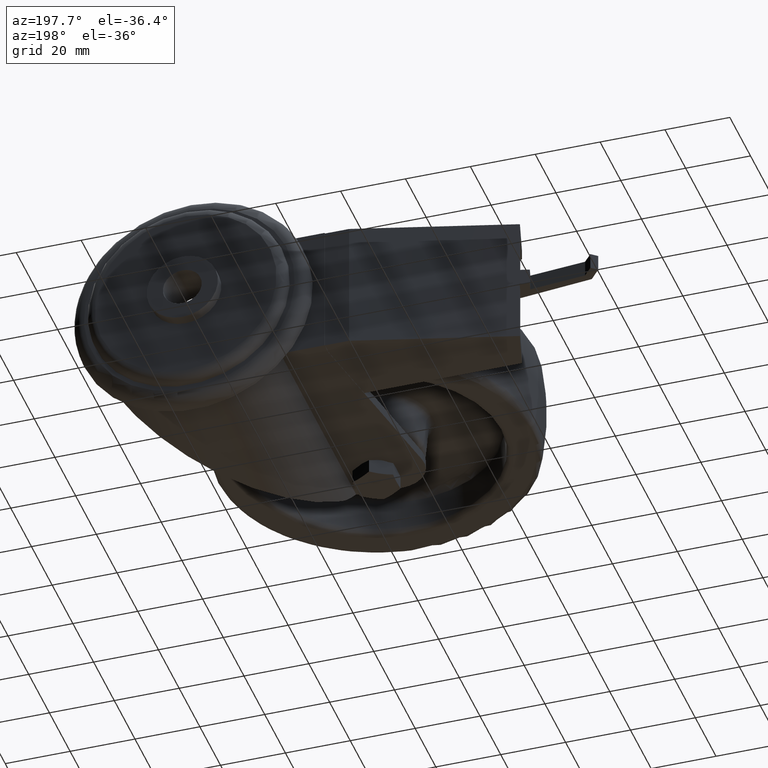
[diagram: clean part render]
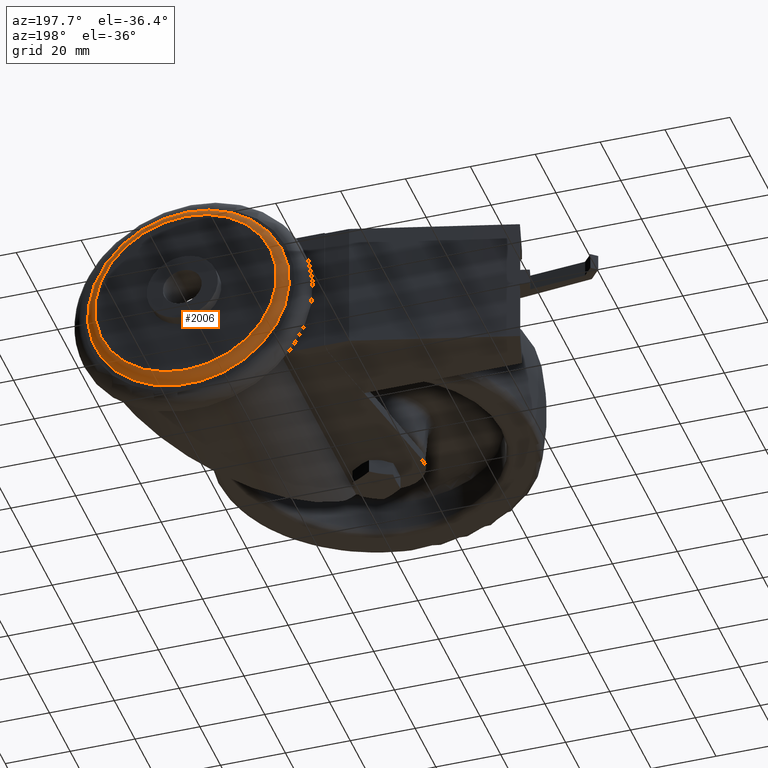
[diagram: same view with one face highlighted and labeled with its STEP entity id]
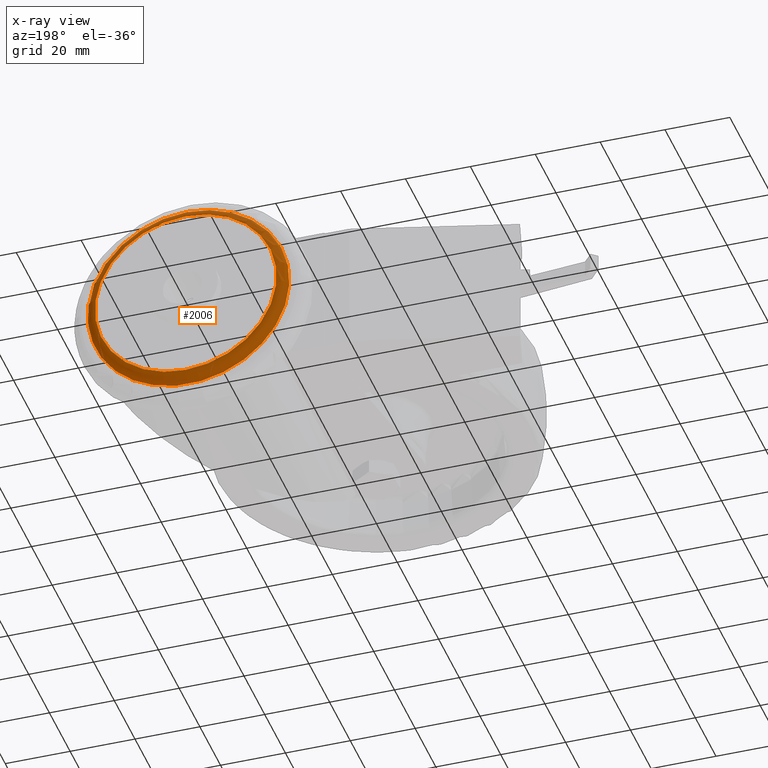
[diagram: x-ray of the same camera — body ghosted, the highlighted face saturated]
A machine part, auxiliary view. The second image highlights one B-rep face of the part: STEP entity #2006.
The next image is the same camera in x-ray: the body ghosted, the highlighted face saturated — about 0% of this face is hidden behind the body in this view.
In plain terms, the highlighted toroidal blend (fillet) surface has major radius 28.025 mm and minor (blend) radius 3 mm.
Its self-contained STEP definition (entity closure, byte-faithful):
#137=TOROIDAL_SURFACE('',#2270,28.025,3.);
#258=FACE_OUTER_BOUND('',#391,.T.);
#391=EDGE_LOOP('',(#1486,#1487,#1488,#1489));
#534=CIRCLE('',#2269,28.025);
#535=CIRCLE('',#2271,31.025);
#536=CIRCLE('',#2272,3.);
#951=VERTEX_POINT('',#3277);
#952=VERTEX_POINT('',#3280);
#1156=EDGE_CURVE('',#951,#951,#534,.T.);
#1157=EDGE_CURVE('',#952,#952,#535,.T.);
#1158=EDGE_CURVE('',#952,#951,#536,.T.);
#1486=ORIENTED_EDGE('',*,*,#1157,.F.);
#1487=ORIENTED_EDGE('',*,*,#1158,.T.);
#1488=ORIENTED_EDGE('',*,*,#1156,.T.);
#1489=ORIENTED_EDGE('',*,*,#1158,.F.);
#2006=ADVANCED_FACE('',(#258),#137,.T.);
#2269=AXIS2_PLACEMENT_3D('',#3278,#2611,#2612);
#2270=AXIS2_PLACEMENT_3D('',#3279,#2613,#2614);
#2271=AXIS2_PLACEMENT_3D('',#3281,#2615,#2616);
#2272=AXIS2_PLACEMENT_3D('',#3282,#2617,#2618);
#2611=DIRECTION('center_axis',(0.,-1.,0.));
#2612=DIRECTION('ref_axis',(0.,0.,-1.));
#2613=DIRECTION('center_axis',(0.,-1.,0.));
#2614=DIRECTION('ref_axis',(0.,0.,-1.));
#2615=DIRECTION('center_axis',(0.,-1.,0.));
#2616=DIRECTION('ref_axis',(0.,0.,-1.));
#2617=DIRECTION('center_axis',(-1.,0.,-1.43139149025E-16));
#2618=DIRECTION('ref_axis',(-1.43139149025E-16,0.,1.));
#3277=CARTESIAN_POINT('',(35.,74.7,28.025));
#3278=CARTESIAN_POINT('Origin',(35.,74.7,0.));
#3279=CARTESIAN_POINT('Origin',(35.,71.7,0.));
#3280=CARTESIAN_POINT('',(35.,71.7,31.025));
#3281=CARTESIAN_POINT('Origin',(35.,71.7,0.));
#3282=CARTESIAN_POINT('Origin',(35.,71.7,28.025));